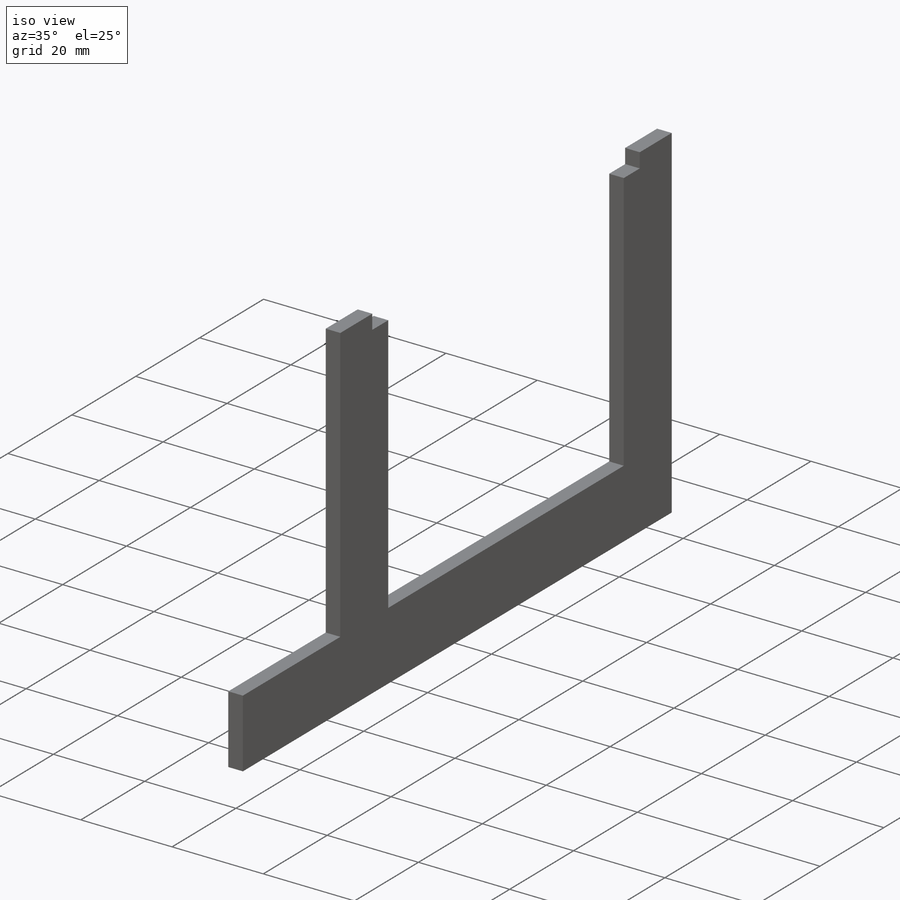
[diagram: iso view]
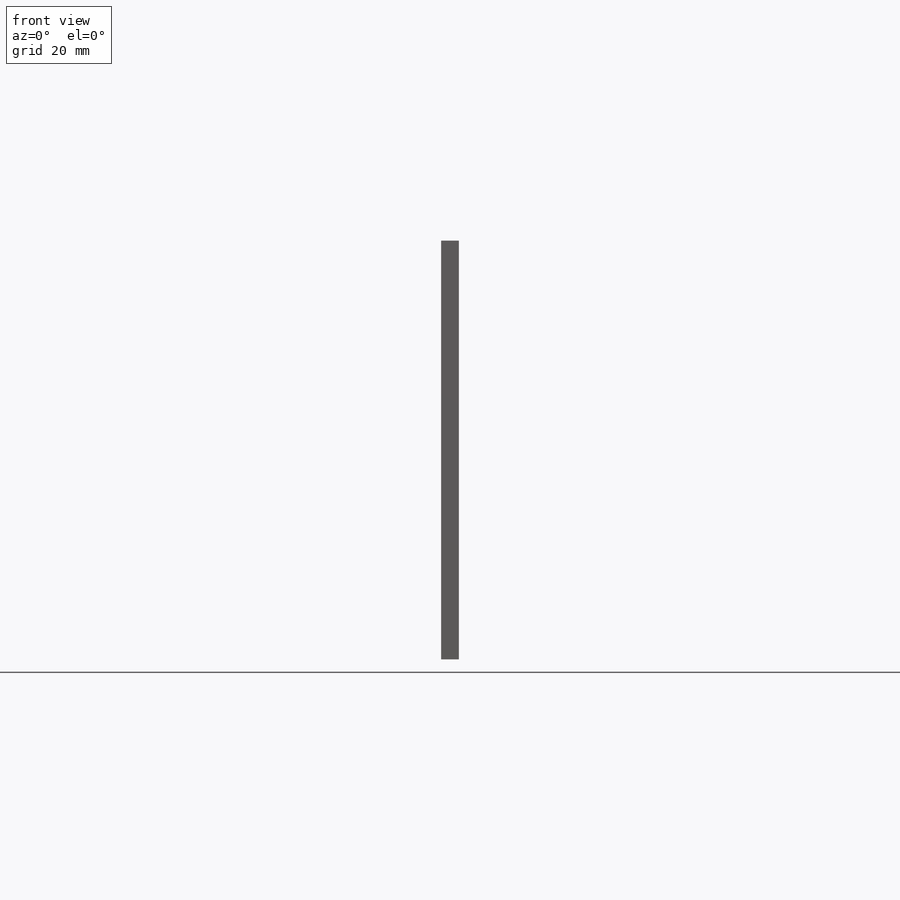
[diagram: front view]
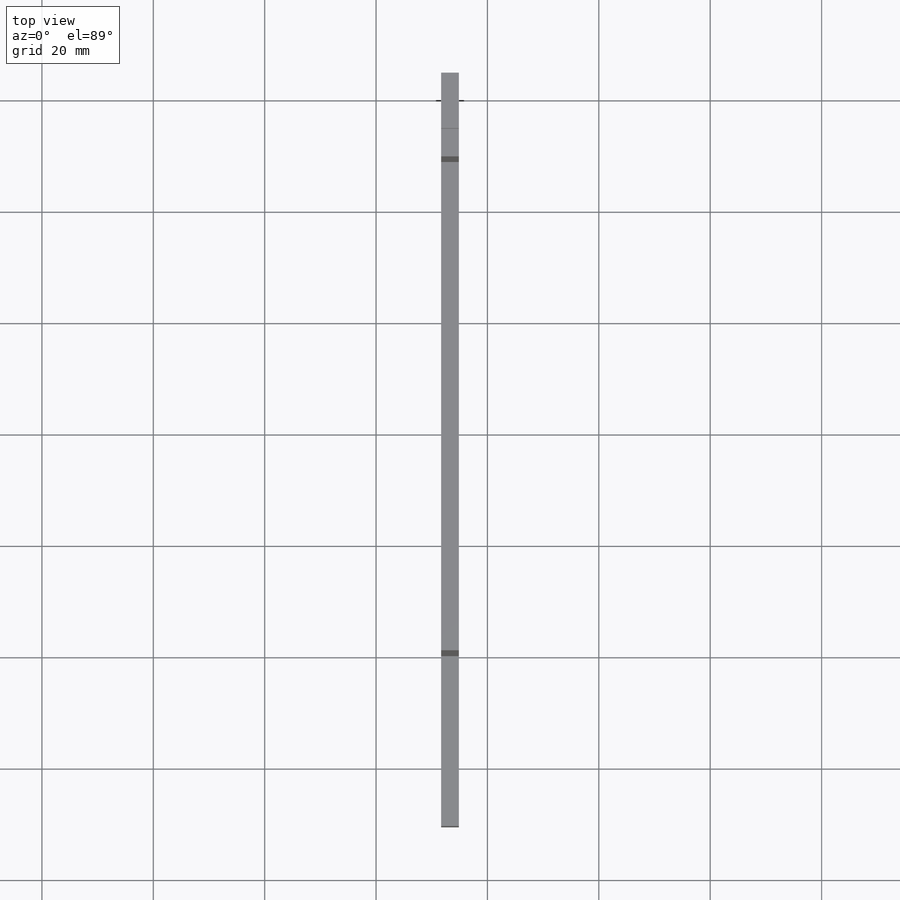
[diagram: top view]
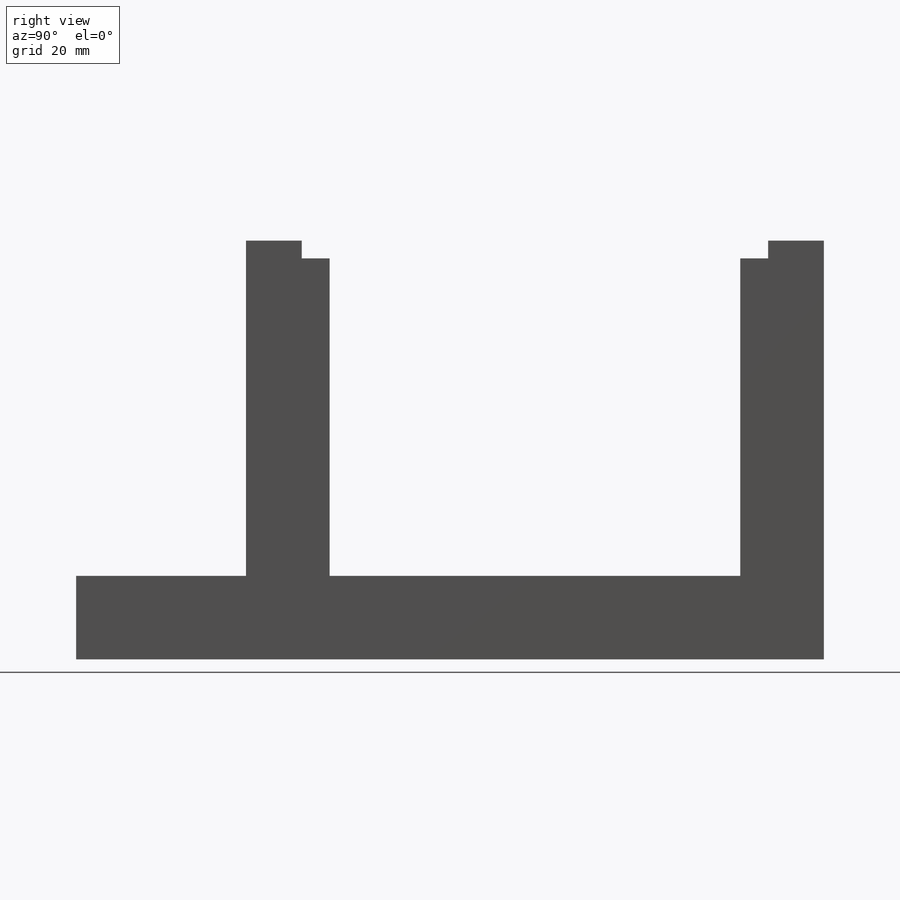
[diagram: right view]
SOLIDWORKS PART (.sldprt)
format: sldprt  version: not decoded by parser v0  size: 367,616 bytes
history: native  units: mm
features: sketch x5, extrude x2, material x1, plane x1, cut_extrude x1 (+11 scaffold rows collapsed)
feature tree (21):
  scaffold x11  (default folders/planes/origin — collapsed)
  material  "Material <not specified>"
  sketch  "Sketch1"  dims[c1.D1=3.2mm c1.D2=5.0mm c1.D3=10.0mm c1.D4=5.0mm c2.D2=2.0mm]
  plane  "Plane1"
  sketch  "Sketch2"  dims[D1=46.0mm D2=72.0mm D3=15.0mm D4=30.0mm D5=60.0mm]
  extrude  "Boss-Extrude1"  [1 undecoded]
  sketch  "Sketch4"  dims[c1.D1=10.0mm c1.D2=10.0mm c2.D1=10.0mm c2.D3=5.0mm c2.D4=10.0mm]
  sketch  "Sketch6"  dims[D1=0.0mm D2=0.0mm D3=0.0mm D4=0.0mm D5=0.0mm D6=0.0mm D7=0.0mm D8=0.0mm D9=0.0mm D10=0.0mm D11=0.0mm D12=0.0mm D13=0.0mm D14=0.1mm]
  cut_extrude  "Cut-Extrude1"  [1 undecoded]
  sketch  "Sketch8"  dims[D1=4.0mm D2=12.0mm]
  extrude  "Boss-Extrude2"  [1 undecoded]
decode coverage: 5 of 8 modeling features carry decoded parameters
note: 3 parameter values undecoded
summary: no parameter record found for 3 features
note: suppression state not decoded; provenance and decode notes live in map.json
